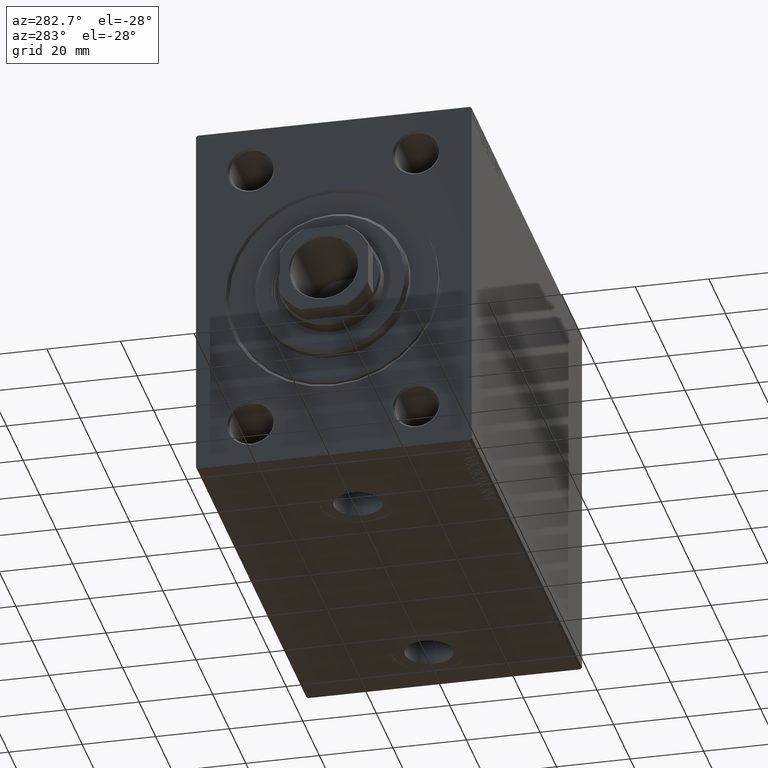
[diagram: clean part render]
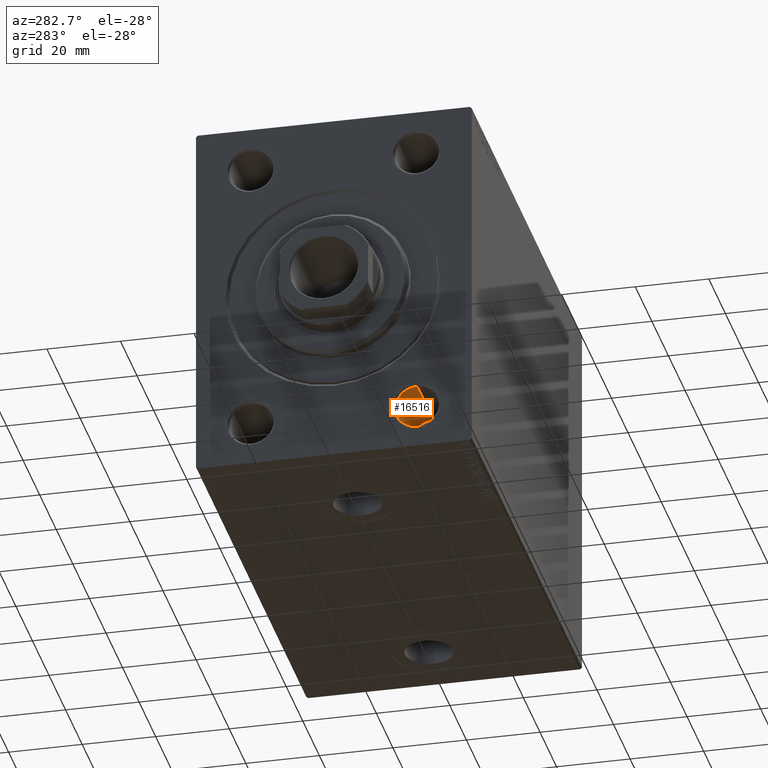
[diagram: same view with one face highlighted and labeled with its STEP entity id]
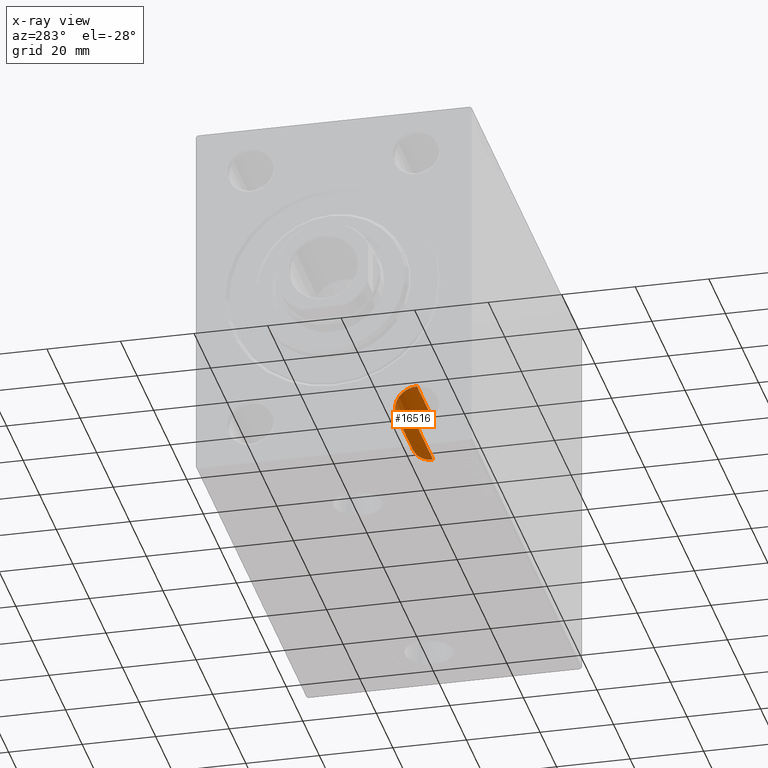
[diagram: x-ray of the same camera — body ghosted, the highlighted face saturated]
A machine part, auxiliary view. The second image highlights one B-rep face of the part: STEP entity #16516.
The next image is the same camera in x-ray: the body ghosted, the highlighted face saturated — about 0% of this face is hidden behind the body in this view.
In plain terms, the highlighted cylindrical surface (edge-blend (fillet) strip) has radius 6 mm, axis along (-1, -0, -0).
Its self-contained STEP definition (entity closure, byte-faithful):
#99 = EDGE_LOOP ( 'NONE', ( #29842, #1818, #29357, #44809 ) ) ;
#1818 = ORIENTED_EDGE ( 'NONE', *, *, #38435, .F. ) ;
#5057 = CIRCLE ( 'NONE', #44907, 5.999999999999998224 ) ;
#6869 = VERTEX_POINT ( 'NONE', #41028 ) ;
#9415 = CARTESIAN_POINT ( 'NONE',  ( 20.00000000000000000, -22.50000000000000000, -32.00000000000000711 ) ) ;
#9768 = CARTESIAN_POINT ( 'NONE',  ( 0.000000000000000000, -22.50000000000000000, -32.00000000000000711 ) ) ;
#10263 = FACE_OUTER_BOUND ( 'NONE', #99, .T. ) ;
#11003 = CARTESIAN_POINT ( 'NONE',  ( 0.5000000000000004441, -22.50000000000000000, -44.00000000000000711 ) ) ;
#11327 = AXIS2_PLACEMENT_3D ( 'NONE', #24364, #31309, #38441 ) ;
#11447 = CARTESIAN_POINT ( 'NONE',  ( 0.000000000000000000, -22.50000000000000000, -44.00000000000000711 ) ) ;
#12736 = DIRECTION ( 'NONE',  ( -1.000000000000000000, -0.000000000000000000, -0.000000000000000000 ) ) ;
#13057 = DIRECTION ( 'NONE',  ( 0.000000000000000000, 0.000000000000000000, -1.000000000000000000 ) ) ;
#16380 = VERTEX_POINT ( 'NONE', #11003 ) ;
#16516 = ADVANCED_FACE ( 'NONE', ( #10263 ), #42156, .F. ) ;
#20005 = DIRECTION ( 'NONE',  ( -1.000000000000000000, 0.000000000000000000, 0.000000000000000000 ) ) ;
#21291 = AXIS2_PLACEMENT_3D ( 'NONE', #27316, #12736, #22933 ) ;
#22933 = DIRECTION ( 'NONE',  ( 0.000000000000000000, 0.000000000000000000, 1.000000000000000000 ) ) ;
#24004 = LINE ( 'NONE', #11447, #31498 ) ;
#24364 = CARTESIAN_POINT ( 'NONE',  ( 0.000000000000000000, -22.50000000000000000, -38.00000000000000711 ) ) ;
#24875 = VECTOR ( 'NONE', #25457, 1000.000000000000000 ) ;
#25457 = DIRECTION ( 'NONE',  ( -1.000000000000000000, -0.000000000000000000, -0.000000000000000000 ) ) ;
#27316 = CARTESIAN_POINT ( 'NONE',  ( 20.00000000000000000, -22.50000000000000000, -38.00000000000000711 ) ) ;
#29155 = EDGE_CURVE ( 'NONE', #42883, #16380, #24004, .T. ) ;
#29357 = ORIENTED_EDGE ( 'NONE', *, *, #32259, .T. ) ;
#29842 = ORIENTED_EDGE ( 'NONE', *, *, #29155, .F. ) ;
#30897 = CIRCLE ( 'NONE', #21291, 5.999999999999998224 ) ;
#31309 = DIRECTION ( 'NONE',  ( -1.000000000000000000, -0.000000000000000000, -0.000000000000000000 ) ) ;
#31498 = VECTOR ( 'NONE', #34646, 1000.000000000000000 ) ;
#32259 = EDGE_CURVE ( 'NONE', #41494, #6869, #41428, .T. ) ;
#34332 = CARTESIAN_POINT ( 'NONE',  ( 0.5000000000000004441, -22.50000000000000000, -38.00000000000000711 ) ) ;
#34646 = DIRECTION ( 'NONE',  ( -1.000000000000000000, -0.000000000000000000, -0.000000000000000000 ) ) ;
#35842 = EDGE_CURVE ( 'NONE', #6869, #16380, #5057, .T. ) ;
#36875 = CARTESIAN_POINT ( 'NONE',  ( 20.00000000000000000, -22.50000000000000000, -44.00000000000000711 ) ) ;
#38435 = EDGE_CURVE ( 'NONE', #41494, #42883, #30897, .T. ) ;
#38441 = DIRECTION ( 'NONE',  ( 0.000000000000000000, 0.000000000000000000, 1.000000000000000000 ) ) ;
#41028 = CARTESIAN_POINT ( 'NONE',  ( 0.5000000000000004441, -22.50000000000000000, -32.00000000000000711 ) ) ;
#41428 = LINE ( 'NONE', #9768, #24875 ) ;
#41494 = VERTEX_POINT ( 'NONE', #9415 ) ;
#42156 = CYLINDRICAL_SURFACE ( 'NONE', #11327, 5.999999999999998224 ) ;
#42883 = VERTEX_POINT ( 'NONE', #36875 ) ;
#44809 = ORIENTED_EDGE ( 'NONE', *, *, #35842, .T. ) ;
#44907 = AXIS2_PLACEMENT_3D ( 'NONE', #34332, #20005, #13057 ) ;